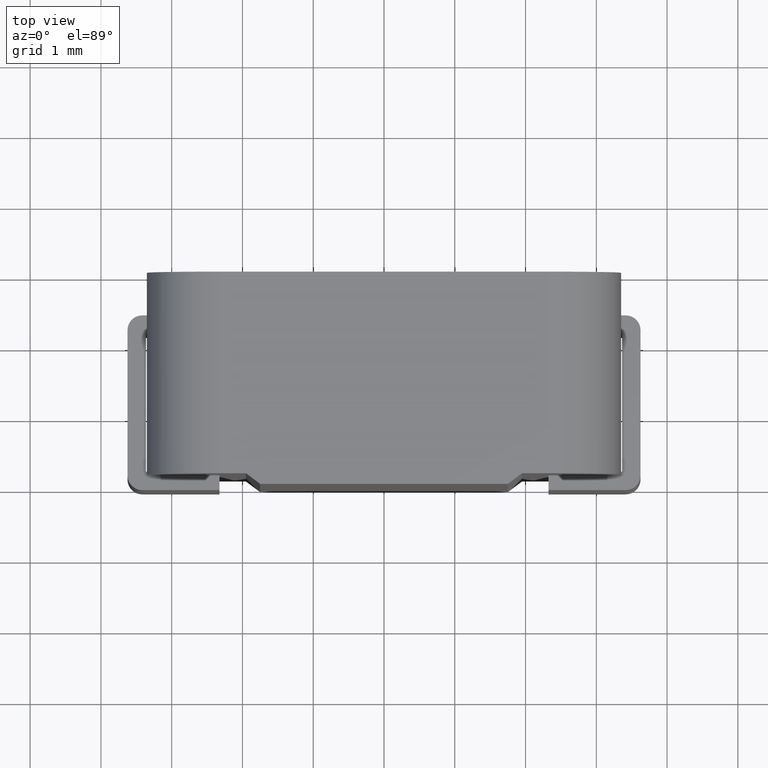
[diagram: clean part render]
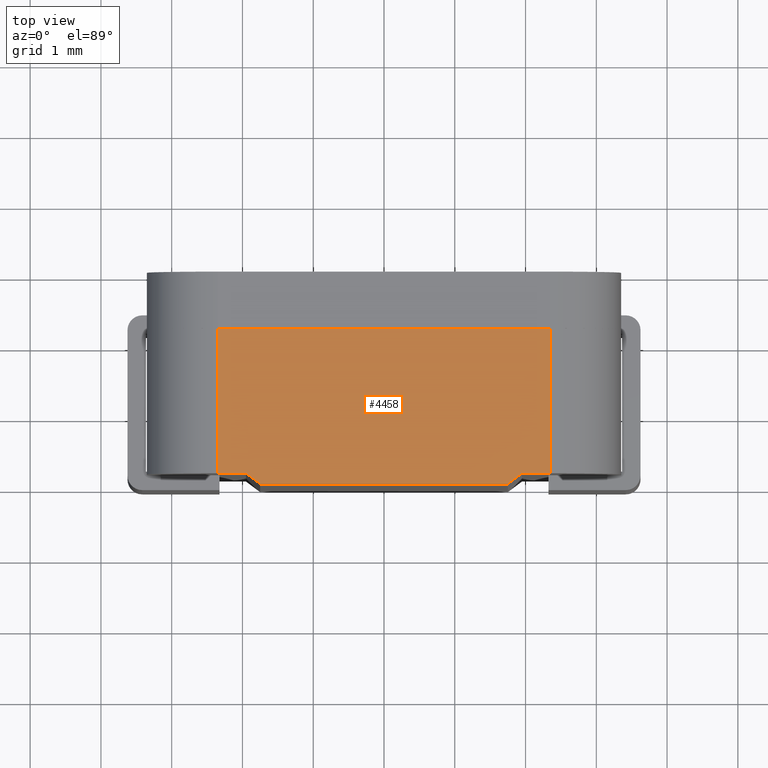
[diagram: same view with one face highlighted and labeled with its STEP entity id]
A machine part, top view. The second image highlights one B-rep face of the part: STEP entity #4458.
In plain terms, the highlighted planar face has unit normal (-0, 0, -1).
Its self-contained STEP definition (entity closure, byte-faithful):
#7 = EDGE_CURVE ( 'NONE', #1002, #5409, #6587, .T. ) ;
#159 = AXIS2_PLACEMENT_3D ( 'NONE', #2411, #824, #2952 ) ;
#236 = VECTOR ( 'NONE', #5053, 1000.000000000000000 ) ;
#294 = VECTOR ( 'NONE', #2921, 1000.000000000000000 ) ;
#479 = CARTESIAN_POINT ( 'NONE',  ( 1.950000000000000622, 0.1499999999999999667, 3.349999999999999645 ) ) ;
#518 = VERTEX_POINT ( 'NONE', #3434 ) ;
#727 = EDGE_CURVE ( 'NONE', #5409, #2218, #4196, .T. ) ;
#824 = DIRECTION ( 'NONE',  ( -1.294569758191646169E-16, 0.0000000000000000000, -1.000000000000000000 ) ) ;
#1002 = VERTEX_POINT ( 'NONE', #4245 ) ;
#1408 = CARTESIAN_POINT ( 'NONE',  ( -1.949999999999999289, 0.1499999999999999667, 3.349999999999999645 ) ) ;
#1483 = LINE ( 'NONE', #3700, #3225 ) ;
#1541 = EDGE_CURVE ( 'NONE', #5188, #2218, #1483, .T. ) ;
#1927 = PLANE ( 'NONE',  #159 ) ;
#2009 = VECTOR ( 'NONE', #6103, 1000.000000000000000 ) ;
#2097 = FACE_OUTER_BOUND ( 'NONE', #3087, .T. ) ;
#2202 = VECTOR ( 'NONE', #4718, 1000.000000000000000 ) ;
#2218 = VERTEX_POINT ( 'NONE', #3449 ) ;
#2411 = CARTESIAN_POINT ( 'NONE',  ( -3.350000000000000089, 3.000000000000000000, 3.349999999999999645 ) ) ;
#2479 = VECTOR ( 'NONE', #3998, 1000.000000000000000 ) ;
#2494 = CARTESIAN_POINT ( 'NONE',  ( 1.950000000000000622, 0.1499999999999999667, 3.349999999999999645 ) ) ;
#2508 = LINE ( 'NONE', #3068, #2009 ) ;
#2772 = LINE ( 'NONE', #1408, #3329 ) ;
#2921 = DIRECTION ( 'NONE',  ( -1.000000000000000000, 1.936075308009828246E-17, -0.0000000000000000000 ) ) ;
#2952 = DIRECTION ( 'NONE',  ( -1.000000000000000000, 0.0000000000000000000, 1.294569758191646169E-16 ) ) ;
#3068 = CARTESIAN_POINT ( 'NONE',  ( -3.350000000000000089, 2.200000000000000178, 3.349999999999999645 ) ) ;
#3087 = EDGE_LOOP ( 'NONE', ( #6314, #4122, #3215, #5582, #5248, #5240, #6236, #5069 ) ) ;
#3215 = ORIENTED_EDGE ( 'NONE', *, *, #5995, .F. ) ;
#3225 = VECTOR ( 'NONE', #5688, 1000.000000000000000 ) ;
#3329 = VECTOR ( 'NONE', #5221, 999.9999999999998863 ) ;
#3362 = LINE ( 'NONE', #6099, #236 ) ;
#3424 = CARTESIAN_POINT ( 'NONE',  ( -1.749999999999999334, 0.0000000000000000000, 3.349999999999999645 ) ) ;
#3434 = CARTESIAN_POINT ( 'NONE',  ( -2.350000000000000089, 2.200000000000000178, 3.349999999999999645 ) ) ;
#3449 = CARTESIAN_POINT ( 'NONE',  ( 1.750000000000000222, 0.0000000000000000000, 3.349999999999998757 ) ) ;
#3487 = CARTESIAN_POINT ( 'NONE',  ( -3.350000000000000089, 0.1499999999999999944, 3.349999999999999645 ) ) ;
#3584 = LINE ( 'NONE', #3487, #294 ) ;
#3608 = DIRECTION ( 'NONE',  ( -0.7999999999999998224, -0.6000000000000001998, 0.0000000000000000000 ) ) ;
#3700 = CARTESIAN_POINT ( 'NONE',  ( -3.350000000000000089, 0.0000000000000000000, 3.349999999999999645 ) ) ;
#3707 = EDGE_CURVE ( 'NONE', #518, #5815, #2508, .T. ) ;
#3998 = DIRECTION ( 'NONE',  ( -0.0000000000000000000, 1.000000000000000000, -0.0000000000000000000 ) ) ;
#4122 = ORIENTED_EDGE ( 'NONE', *, *, #4182, .T. ) ;
#4182 = EDGE_CURVE ( 'NONE', #518, #4503, #3362, .T. ) ;
#4189 = VERTEX_POINT ( 'NONE', #5589 ) ;
#4196 = LINE ( 'NONE', #479, #5419 ) ;
#4205 = CARTESIAN_POINT ( 'NONE',  ( 3.350000000000001865, 0.1500000000000007994, 3.349999999999999645 ) ) ;
#4245 = CARTESIAN_POINT ( 'NONE',  ( 2.350000000000003642, 0.1500000000000002165, 3.349999999999999645 ) ) ;
#4458 = ADVANCED_FACE ( 'NONE', ( #2097 ), #1927, .F. ) ;
#4484 = CARTESIAN_POINT ( 'NONE',  ( -2.350000000000000089, 0.1499999999999999667, 3.349999999999999645 ) ) ;
#4503 = VERTEX_POINT ( 'NONE', #4484 ) ;
#4718 = DIRECTION ( 'NONE',  ( -1.000000000000000000, -6.001833454830465621E-16, 0.0000000000000000000 ) ) ;
#5053 = DIRECTION ( 'NONE',  ( 0.0000000000000000000, -1.000000000000000000, 0.0000000000000000000 ) ) ;
#5069 = ORIENTED_EDGE ( 'NONE', *, *, #5177, .T. ) ;
#5177 = EDGE_CURVE ( 'NONE', #1002, #5815, #5202, .T. ) ;
#5188 = VERTEX_POINT ( 'NONE', #3424 ) ;
#5202 = LINE ( 'NONE', #5468, #2479 ) ;
#5221 = DIRECTION ( 'NONE',  ( -0.7999999999999998224, 0.6000000000000001998, -0.0000000000000000000 ) ) ;
#5240 = ORIENTED_EDGE ( 'NONE', *, *, #727, .F. ) ;
#5248 = ORIENTED_EDGE ( 'NONE', *, *, #1541, .T. ) ;
#5409 = VERTEX_POINT ( 'NONE', #2494 ) ;
#5419 = VECTOR ( 'NONE', #3608, 999.9999999999998863 ) ;
#5443 = CARTESIAN_POINT ( 'NONE',  ( 2.350000000000003642, 2.200000000000000178, 3.349999999999998757 ) ) ;
#5468 = CARTESIAN_POINT ( 'NONE',  ( 2.350000000000003642, 3.000000000000000000, 3.349999999999998757 ) ) ;
#5582 = ORIENTED_EDGE ( 'NONE', *, *, #6097, .F. ) ;
#5589 = CARTESIAN_POINT ( 'NONE',  ( -1.949999999999999289, 0.1499999999999999667, 3.349999999999999645 ) ) ;
#5688 = DIRECTION ( 'NONE',  ( 1.000000000000000000, 0.0000000000000000000, -1.294569758191646169E-16 ) ) ;
#5815 = VERTEX_POINT ( 'NONE', #5443 ) ;
#5995 = EDGE_CURVE ( 'NONE', #4189, #4503, #3584, .T. ) ;
#6097 = EDGE_CURVE ( 'NONE', #5188, #4189, #2772, .T. ) ;
#6099 = CARTESIAN_POINT ( 'NONE',  ( -2.350000000000000089, 3.000000000000000000, 3.349999999999999645 ) ) ;
#6103 = DIRECTION ( 'NONE',  ( 1.000000000000000000, 0.0000000000000000000, -1.294569758191646169E-16 ) ) ;
#6236 = ORIENTED_EDGE ( 'NONE', *, *, #7, .F. ) ;
#6314 = ORIENTED_EDGE ( 'NONE', *, *, #3707, .F. ) ;
#6587 = LINE ( 'NONE', #4205, #2202 ) ;